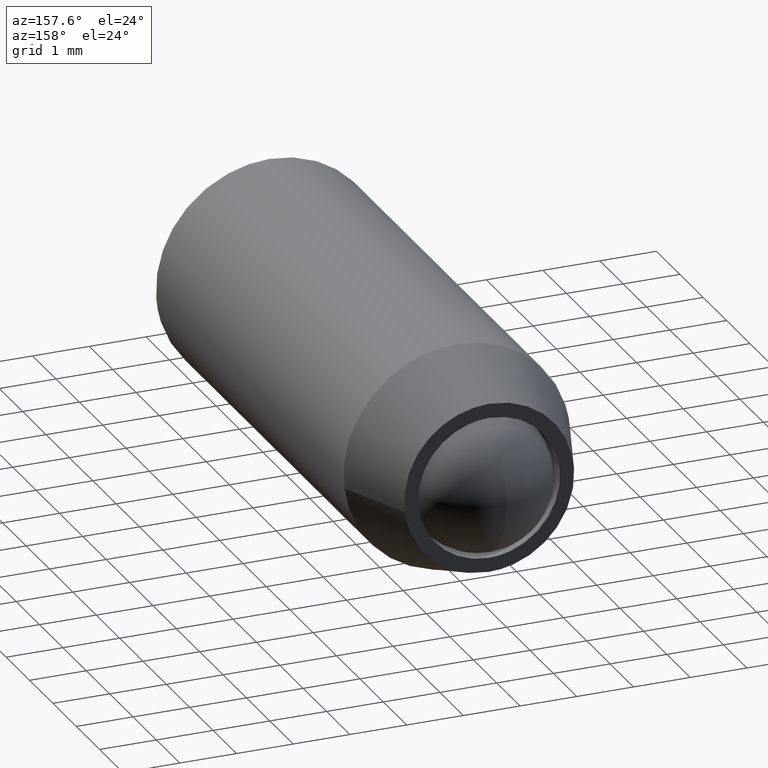
[diagram: clean part render]
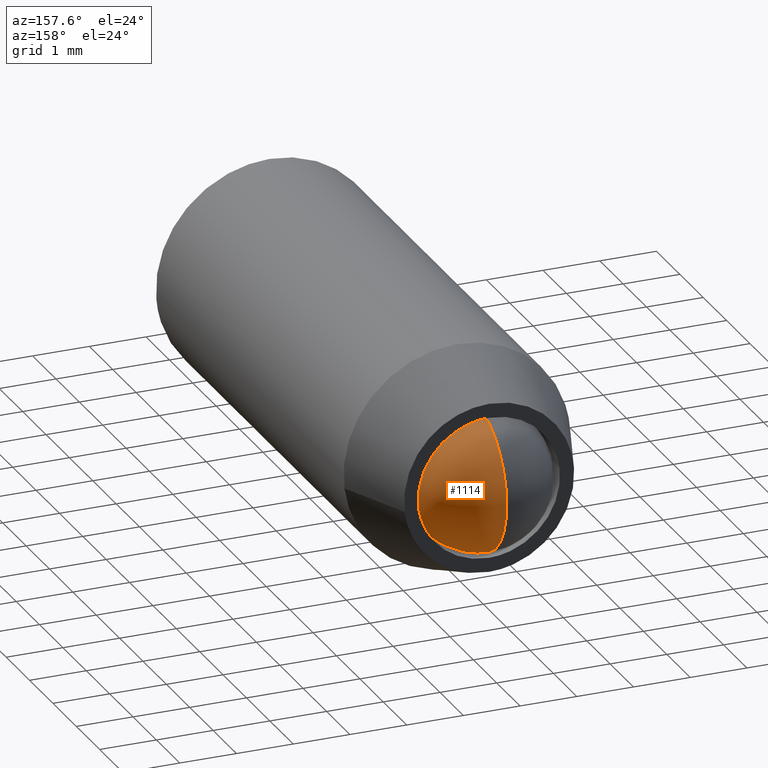
[diagram: same view with one face highlighted and labeled with its STEP entity id]
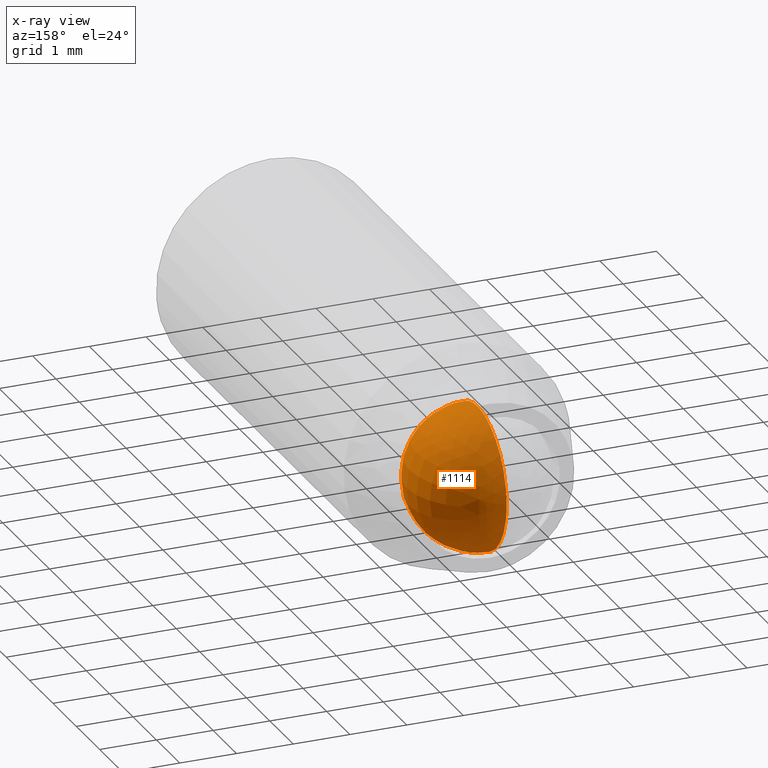
[diagram: x-ray of the same camera — body ghosted, the highlighted face saturated]
A machine part, auxiliary view. The second image highlights one B-rep face of the part: STEP entity #1114.
The next image is the same camera in x-ray: the body ghosted, the highlighted face saturated — about 0% of this face is hidden behind the body in this view.
In plain terms, the highlighted face is a freeform B-spline surface patch.
Its self-contained STEP definition (entity closure, byte-faithful):
#1029=CARTESIAN_POINT('',(0.0,0.0,3.673819E-016));
#1030=VERTEX_POINT('',#1029);
#1031=CARTESIAN_POINT('',(0.0,-2.500000000000000,3.673819E-016));
#1032=VERTEX_POINT('',#1031);
#1033=CARTESIAN_POINT('',(0.0,0.0,3.673819E-016));
#1034=CARTESIAN_POINT('',(0.0,0.0,-1.250000000000000));
#1035=CARTESIAN_POINT('',(0.0,-1.250000000000000,-1.250000000000000));
#1036=CARTESIAN_POINT('',(0.0,-2.500000000000000,-1.250000000000000));
#1037=CARTESIAN_POINT('',(0.0,-2.500000000000000,3.673819E-016));
#1045=(BOUNDED_CURVE()B_SPLINE_CURVE(2,(#1033,#1034,#1035,#1036,#1037),.UNSPECIFIED.,.F.,.U.)B_SPLINE_CURVE_WITH_KNOTS((3,2,3),(0.0,0.500000000000000,1.0),.UNSPECIFIED.)CURVE()GEOMETRIC_REPRESENTATION_ITEM()RATIONAL_B_SPLINE_CURVE((1.0,0.707106781186548,1.0,0.707106781186548,1.0))REPRESENTATION_ITEM(''));
#1046=EDGE_CURVE('',#1030,#1032,#1045,.T.);
#1048=CARTESIAN_POINT('',(0.0,0.0,3.673819E-016));
#1049=CARTESIAN_POINT('',(0.0,0.0,1.250000000000000));
#1050=CARTESIAN_POINT('',(0.0,-1.250000000000000,1.250000000000000));
#1051=CARTESIAN_POINT('',(0.0,-2.500000000000000,1.250000000000000));
#1052=CARTESIAN_POINT('',(0.0,-2.500000000000000,3.673819E-016));
#1060=(BOUNDED_CURVE()B_SPLINE_CURVE(2,(#1048,#1049,#1050,#1051,#1052),.UNSPECIFIED.,.F.,.U.)B_SPLINE_CURVE_WITH_KNOTS((3,2,3),(0.0,0.500000000000000,1.0),.UNSPECIFIED.)CURVE()GEOMETRIC_REPRESENTATION_ITEM()RATIONAL_B_SPLINE_CURVE((1.0,0.707106781186548,1.0,0.707106781186548,1.0))REPRESENTATION_ITEM(''));
#1061=EDGE_CURVE('',#1030,#1032,#1060,.T.);
#1066=CARTESIAN_POINT('',(-0.468750000000000,-2.069381912632931,-0.819381912632930));
#1067=CARTESIAN_POINT('',(-0.306603773584906,-1.992081732195862,-0.989442309594482));
#1068=CARTESIAN_POINT('',(-0.059523809523810,-1.562145490526831,-1.248581962107322));
#1069=CARTESIAN_POINT('',(-0.059523809523810,-0.937854509473169,-1.248581962107322));
#1070=CARTESIAN_POINT('',(-0.306603773584906,-0.507918267804139,-0.989442309594482));
#1071=CARTESIAN_POINT('',(-0.468750000000000,-0.430618087367069,-0.819381912632930));
#1072=CARTESIAN_POINT('',(-0.306603773584906,-2.239442309594482,-0.742081732195861));
#1073=CARTESIAN_POINT('',(-0.059523809523810,-2.186436471580492,-0.936436471580492));
#1074=CARTESIAN_POINT('',(0.362903225806452,-1.672906793616997,-1.268720380850989));
#1075=CARTESIAN_POINT('',(0.362903225806452,-0.827093206383003,-1.268720380850989));
#1076=CARTESIAN_POINT('',(-0.059523809523810,-0.313563528419508,-0.936436471580492));
#1077=CARTESIAN_POINT('',(-0.306603773584906,-0.260557690405518,-0.742081732195861));
#1078=CARTESIAN_POINT('',(-0.059523809523810,-2.498581962107323,-0.312145490526830));
#1079=CARTESIAN_POINT('',(0.362903225806452,-2.518720380850990,-0.422906793616996));
#1080=CARTESIAN_POINT('',(1.250000000000000,-1.905505530106345,-0.655505530106344));
#1081=CARTESIAN_POINT('',(1.250000000000000,-0.594494469893655,-0.655505530106344));
#1082=CARTESIAN_POINT('',(0.362903225806452,0.018720380850989,-0.422906793616996));
#1083=CARTESIAN_POINT('',(-0.059523809523810,-0.001418037892677,-0.312145490526830));
#1084=CARTESIAN_POINT('',(-0.059523809523810,-2.498581962107323,0.312145490526831));
#1085=CARTESIAN_POINT('',(0.362903225806452,-2.518720380850990,0.422906793616997));
#1086=CARTESIAN_POINT('',(1.250000000000000,-1.905505530106345,0.655505530106345));
#1087=CARTESIAN_POINT('',(1.250000000000000,-0.594494469893655,0.655505530106345));
#1088=CARTESIAN_POINT('',(0.362903225806452,0.018720380850989,0.422906793616997));
#1089=CARTESIAN_POINT('',(-0.059523809523810,-0.001418037892677,0.312145490526831));
#1090=CARTESIAN_POINT('',(-0.306603773584906,-2.239442309594482,0.742081732195862));
#1091=CARTESIAN_POINT('',(-0.059523809523810,-2.186436471580492,0.936436471580492));
#1092=CARTESIAN_POINT('',(0.362903225806452,-1.672906793616997,1.268720380850990));
#1093=CARTESIAN_POINT('',(0.362903225806452,-0.827093206383003,1.268720380850990));
#1094=CARTESIAN_POINT('',(-0.059523809523810,-0.313563528419508,0.936436471580492));
#1095=CARTESIAN_POINT('',(-0.306603773584906,-0.260557690405518,0.742081732195862));
#1096=CARTESIAN_POINT('',(-0.468750000000000,-2.069381912632931,0.819381912632931));
#1097=CARTESIAN_POINT('',(-0.306603773584906,-1.992081732195862,0.989442309594483));
#1098=CARTESIAN_POINT('',(-0.059523809523810,-1.562145490526831,1.248581962107323));
#1099=CARTESIAN_POINT('',(-0.059523809523810,-0.937854509473169,1.248581962107323));
#1100=CARTESIAN_POINT('',(-0.306603773584906,-0.507918267804139,0.989442309594483));
#1101=CARTESIAN_POINT('',(-0.468750000000000,-0.430618087367069,0.819381912632931));
#1109=(BOUNDED_SURFACE()B_SPLINE_SURFACE(2,2,((#1066,#1072,#1078,#1084,#1090,#1096),(#1067,#1073,#1079,#1085,#1091,#1097),(#1068,#1074,#1080,#1086,#1092,#1098),(#1069,#1075,#1081,#1087,#1093,#1099),(#1070,#1076,#1082,#1088,#1094,#1100),(#1071,#1077,#1083,#1089,#1095,#1101)),.UNSPECIFIED.,.F.,.F.,.U.)GEOMETRIC_REPRESENTATION_ITEM()QUASI_UNIFORM_SURFACE()RATIONAL_B_SPLINE_SURFACE(((3.200000000000000,2.650000000000000,2.100000000000000,2.100000000000000,2.650000000000000,3.200000000000000),(2.650000000000000,2.100000000000000,1.550000000000000,1.550000000000000,2.100000000000000,2.650000000000000),(2.100000000000000,1.550000000000000,1.0,1.0,1.550000000000000,2.100000000000000),(2.100000000000000,1.550000000000000,1.0,1.0,1.550000000000000,2.100000000000000),(2.650000000000000,2.100000000000000,1.550000000000000,1.550000000000000,2.100000000000000,2.650000000000000),(3.200000000000000,2.650000000000000,2.100000000000000,2.100000000000000,2.650000000000000,3.200000000000000)))REPRESENTATION_ITEM('')SURFACE());
#1110=ORIENTED_EDGE('',*,*,#1061,.T.);
#1111=ORIENTED_EDGE('',*,*,#1046,.F.);
#1112=EDGE_LOOP('',(#1110,#1111));
#1113=FACE_OUTER_BOUND('',#1112,.T.);
#1114=ADVANCED_FACE('',(#1113),#1109,.T.);